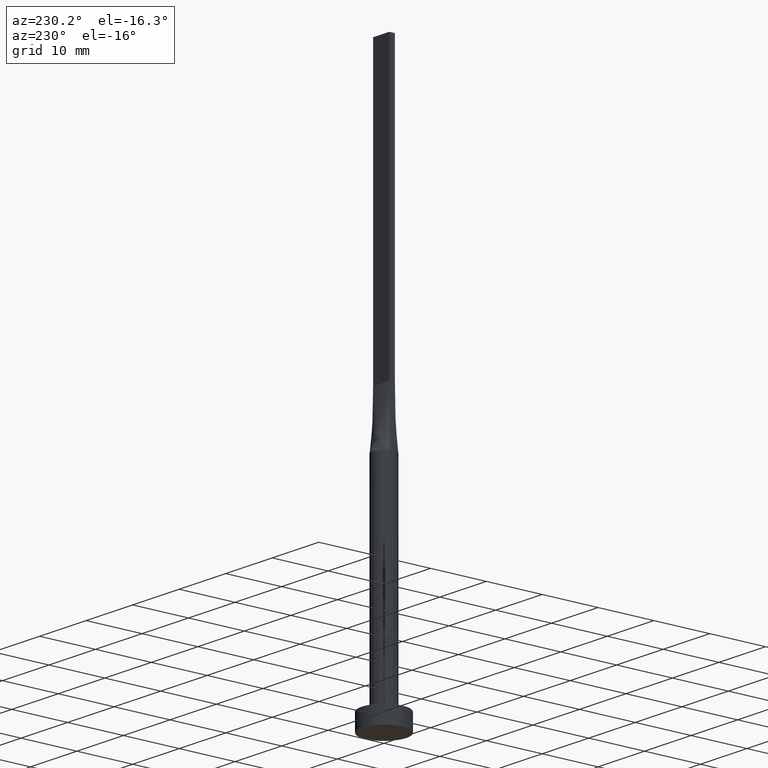
[diagram: clean part render]
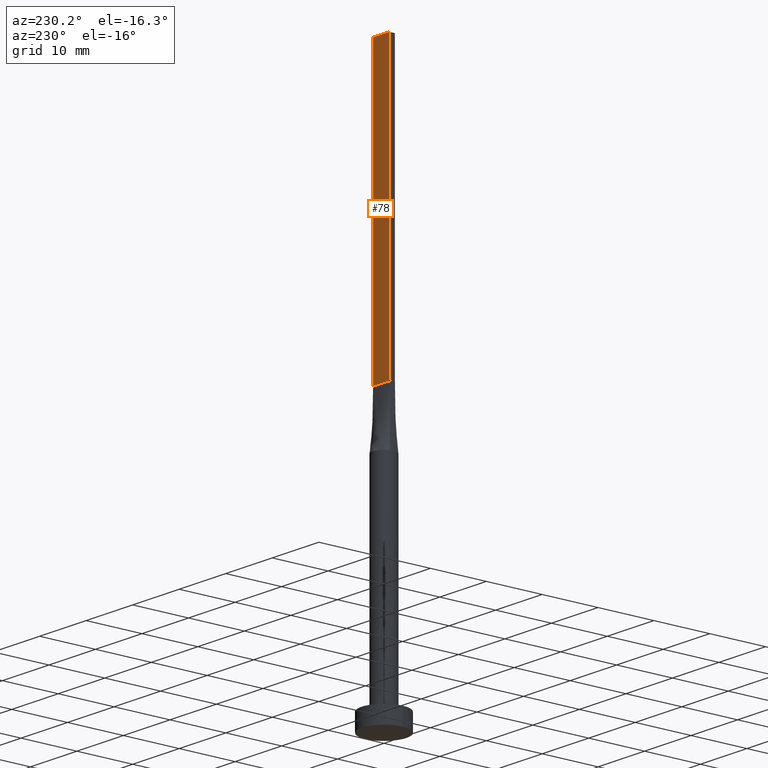
[diagram: same view with one face highlighted and labeled with its STEP entity id]
A machine part, auxiliary view. The second image highlights one B-rep face of the part: STEP entity #78.
In plain terms, the highlighted planar face has unit normal (0, -1, 0).
Its self-contained STEP definition (entity closure, byte-faithful):
#17 = CARTESIAN_POINT ( 'NONE',  ( 1.749999999999999778, 0.5000000000000002220, 50.00000000000000000 ) ) ;
#29 = DIRECTION ( 'NONE',  ( -0.000000000000000000, -0.000000000000000000, -1.000000000000000000 ) ) ;
#37 = EDGE_CURVE ( 'NONE', #394, #463, #211, .T. ) ;
#62 = DIRECTION ( 'NONE',  ( -1.000000000000000000, -0.000000000000000000, -0.000000000000000000 ) ) ;
#68 = DIRECTION ( 'NONE',  ( 0.000000000000000000, -1.000000000000000000, 0.000000000000000000 ) ) ;
#78 = ADVANCED_FACE ( 'NONE', ( #376 ), #506, .F. ) ;
#85 = VECTOR ( 'NONE', #29, 1000.000000000000000 ) ;
#115 = VECTOR ( 'NONE', #353, 1000.000000000000000 ) ;
#169 = LINE ( 'NONE', #521, #115 ) ;
#172 = ORIENTED_EDGE ( 'NONE', *, *, #562, .F. ) ;
#182 = ORIENTED_EDGE ( 'NONE', *, *, #250, .F. ) ;
#199 = CARTESIAN_POINT ( 'NONE',  ( -1.749999999999999778, 0.5000000000000002220, 50.00000000000000000 ) ) ;
#203 = CARTESIAN_POINT ( 'NONE',  ( 1.749999999999999778, 0.5000000000000002220, 100.0000000000000000 ) ) ;
#204 = CARTESIAN_POINT ( 'NONE',  ( -1.749999999999999778, 0.5000000000000002220, 100.0000000000000000 ) ) ;
#211 = LINE ( 'NONE', #469, #407 ) ;
#236 = AXIS2_PLACEMENT_3D ( 'NONE', #203, #68, #557 ) ;
#250 = EDGE_CURVE ( 'NONE', #394, #572, #169, .T. ) ;
#262 = VECTOR ( 'NONE', #62, 1000.000000000000000 ) ;
#300 = CARTESIAN_POINT ( 'NONE',  ( -1.749999999999999778, 0.5000000000000002220, 50.00000000000000000 ) ) ;
#305 = LINE ( 'NONE', #204, #85 ) ;
#342 = ORIENTED_EDGE ( 'NONE', *, *, #37, .T. ) ;
#343 = CARTESIAN_POINT ( 'NONE',  ( -1.749999999999999778, 0.5000000000000002220, 100.0000000000000000 ) ) ;
#351 = ORIENTED_EDGE ( 'NONE', *, *, #485, .T. ) ;
#353 = DIRECTION ( 'NONE',  ( -1.000000000000000000, 0.000000000000000000, 0.000000000000000000 ) ) ;
#376 = FACE_OUTER_BOUND ( 'NONE', #561, .T. ) ;
#394 = VERTEX_POINT ( 'NONE', #579 ) ;
#407 = VECTOR ( 'NONE', #555, 1000.000000000000000 ) ;
#463 = VERTEX_POINT ( 'NONE', #17 ) ;
#469 = CARTESIAN_POINT ( 'NONE',  ( 1.749999999999999778, 0.5000000000000002220, 100.0000000000000000 ) ) ;
#485 = EDGE_CURVE ( 'NONE', #463, #575, #510, .T. ) ;
#506 = PLANE ( 'NONE',  #236 ) ;
#510 = LINE ( 'NONE', #199, #262 ) ;
#521 = CARTESIAN_POINT ( 'NONE',  ( 1.749999999999999778, 0.5000000000000002220, 100.0000000000000000 ) ) ;
#555 = DIRECTION ( 'NONE',  ( -0.000000000000000000, -0.000000000000000000, -1.000000000000000000 ) ) ;
#557 = DIRECTION ( 'NONE',  ( 0.000000000000000000, -0.000000000000000000, -1.000000000000000000 ) ) ;
#561 = EDGE_LOOP ( 'NONE', ( #351, #172, #182, #342 ) ) ;
#562 = EDGE_CURVE ( 'NONE', #572, #575, #305, .T. ) ;
#572 = VERTEX_POINT ( 'NONE', #343 ) ;
#575 = VERTEX_POINT ( 'NONE', #300 ) ;
#579 = CARTESIAN_POINT ( 'NONE',  ( 1.749999999999999778, 0.5000000000000002220, 100.0000000000000000 ) ) ;